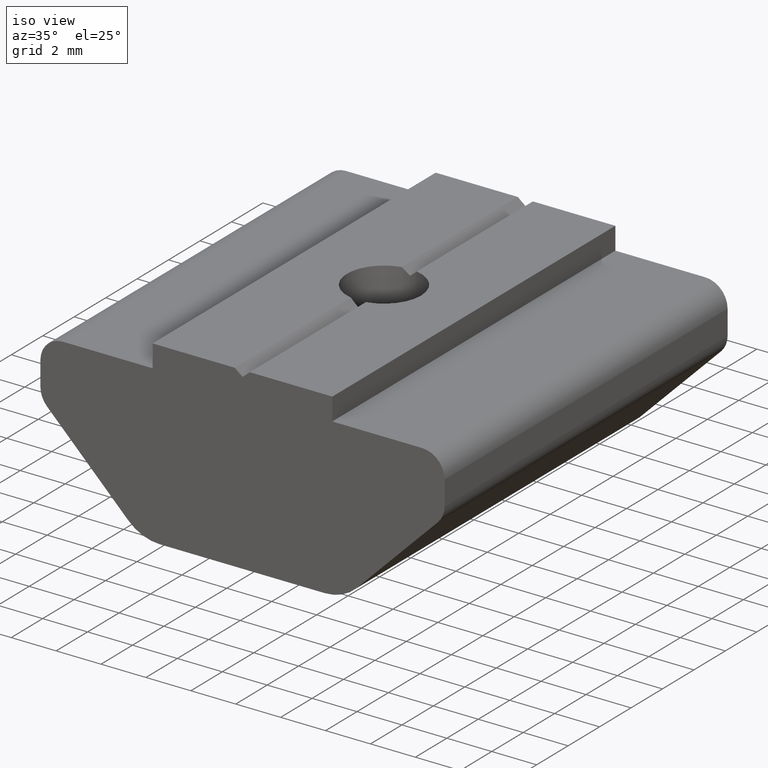
[diagram: clean part render]
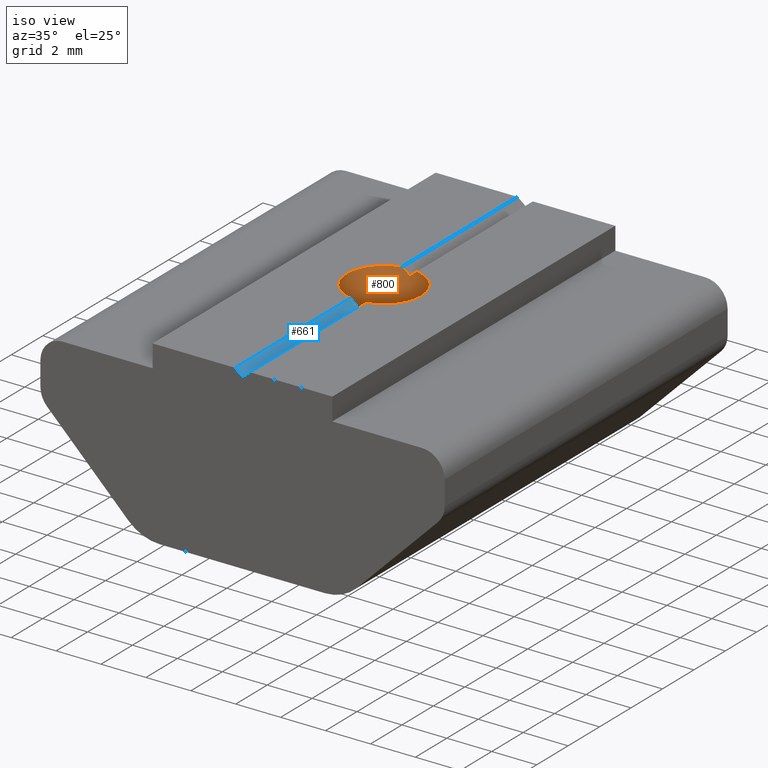
[diagram: same view with the hole feature highlighted: cylindrical wall and planar end face, labeled with their STEP entity ids]
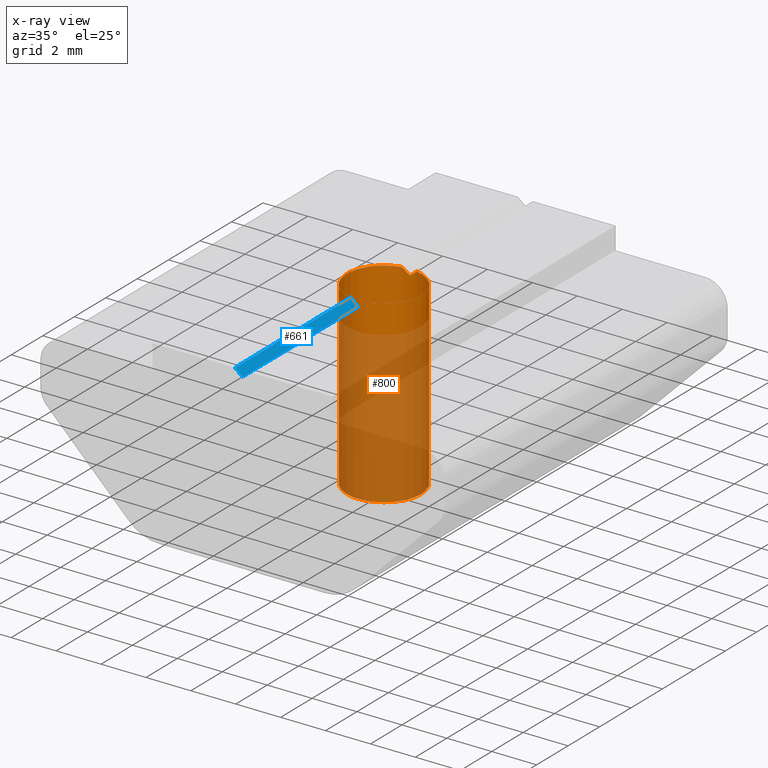
[diagram: x-ray of the same camera — body ghosted, the hole faces saturated]
A machine part, iso view. The highlighted faces form one hole feature of diameter 3.3 mm: the cylindrical wall (entity #800, orange) and its adjacent planar end face (entity #661, blue) — they share a circular edge in the B-rep.
The next image is the same camera in x-ray (body ghosted, the hole faces saturated) — the bore reads through the body.
Wall:
#233=CARTESIAN_POINT('',(-1.650000000000000,0.0,0.0));
#234=VERTEX_POINT('',#233);
#235=CARTESIAN_POINT('',(1.650000000000006,0.0,0.0));
#236=VERTEX_POINT('',#235);
#237=CARTESIAN_POINT('',(0.0,0.0,0.0));
#238=DIRECTION('',(0.0,-6.123234E-017,-1.0));
#239=DIRECTION('',(1.0,0.0,0.0));
#240=AXIS2_PLACEMENT_3D('',#237,#238,#239);
#241=CIRCLE('',#240,1.650000000000000);
#242=EDGE_CURVE('',#234,#236,#241,.T.);
#244=CARTESIAN_POINT('',(0.0,0.0,0.0));
#245=DIRECTION('',(0.0,-6.123234E-017,-1.0));
#246=DIRECTION('',(1.0,0.0,0.0));
#247=AXIS2_PLACEMENT_3D('',#244,#245,#246);
#248=CIRCLE('',#247,1.650000000000000);
#249=EDGE_CURVE('',#236,#234,#248,.T.);
#490=CARTESIAN_POINT('',(0.328340585124039,1.617001069931739,7.999998224000024));
#491=VERTEX_POINT('',#490);
#498=CARTESIAN_POINT('',(1.650000000000006,4.898586E-016,7.999998227599690));
#499=VERTEX_POINT('',#498);
#500=CARTESIAN_POINT('',(0.0,4.898586E-016,7.999998223105763));
#501=DIRECTION('',(0.0,-6.123234E-017,-1.0));
#502=DIRECTION('',(1.0,0.0,0.0));
#503=AXIS2_PLACEMENT_3D('',#500,#501,#502);
#504=CIRCLE('',#503,1.650000000000000);
#505=EDGE_CURVE('',#491,#499,#504,.T.);
#507=CARTESIAN_POINT('',(0.328340585124039,-1.617001069931745,7.999998224000024));
#508=VERTEX_POINT('',#507);
#509=CARTESIAN_POINT('',(0.0,4.898586E-016,7.999998223105763));
#510=DIRECTION('',(0.0,-6.123234E-017,-1.0));
#511=DIRECTION('',(1.0,0.0,0.0));
#512=AXIS2_PLACEMENT_3D('',#509,#510,#511);
#513=CIRCLE('',#512,1.650000000000000);
#514=EDGE_CURVE('',#499,#508,#513,.T.);
#547=CARTESIAN_POINT('',(8.015661E-009,1.649999999999999,7.725737074885956));
#548=VERTEX_POINT('',#547);
#555=CARTESIAN_POINT('',(0.0,4.730650E-016,7.725737068190712));
#556=DIRECTION('',(0.641072358860515,-4.699462E-017,-0.767480443206871));
#557=DIRECTION('',(0.767480443206871,3.925436E-017,0.641072358860515));
#558=AXIS2_PLACEMENT_3D('',#555,#556,#557);
#559=ELLIPSE('',#558,2.149891915298289,1.650000000000000);
#560=EDGE_CURVE('',#548,#491,#559,.T.);
#572=CARTESIAN_POINT('',(8.015661E-009,-1.650000000000005,7.725737074885956));
#573=VERTEX_POINT('',#572);
#574=CARTESIAN_POINT('',(0.0,4.730650E-016,7.725737068190712));
#575=DIRECTION('',(0.641072358860515,-4.699462E-017,-0.767480443206871));
#576=DIRECTION('',(0.767480443206871,3.925436E-017,0.641072358860515));
#577=AXIS2_PLACEMENT_3D('',#574,#575,#576);
#578=ELLIPSE('',#577,2.149891915298289,1.650000000000000);
#579=EDGE_CURVE('',#508,#573,#578,.T.);
#611=CARTESIAN_POINT('',(-0.343286605774694,1.613894143460371,7.999998234000032));
#612=VERTEX_POINT('',#611);
#619=CARTESIAN_POINT('',(0.0,4.730650E-016,7.725737081289935));
#620=DIRECTION('',(-0.624184046708014,-4.783944E-017,-0.781277336056287));
#621=DIRECTION('',(-0.781277336056287,3.822025E-017,0.624184046708014));
#622=AXIS2_PLACEMENT_3D('',#619,#620,#621);
#623=ELLIPSE('',#622,2.111926103384530,1.650000000000000);
#624=EDGE_CURVE('',#612,#548,#623,.T.);
#636=CARTESIAN_POINT('',(-0.343286605774694,-1.613894143460370,7.999998234000032));
#637=VERTEX_POINT('',#636);
#638=CARTESIAN_POINT('',(0.0,4.730650E-016,7.725737081289935));
#639=DIRECTION('',(-0.624184046708014,-4.783944E-017,-0.781277336056287));
#640=DIRECTION('',(-0.781277336056287,3.822025E-017,0.624184046708014));
#641=AXIS2_PLACEMENT_3D('',#638,#639,#640);
#642=ELLIPSE('',#641,2.111926103384530,1.650000000000000);
#643=EDGE_CURVE('',#573,#637,#642,.T.);
#690=CARTESIAN_POINT('',(0.0,4.898586E-016,7.999998234000032));
#691=DIRECTION('',(0.0,-6.123234E-017,-1.0));
#692=DIRECTION('',(1.0,0.0,0.0));
#693=AXIS2_PLACEMENT_3D('',#690,#691,#692);
#694=CIRCLE('',#693,1.650000000000000);
#695=EDGE_CURVE('',#637,#612,#694,.T.);
#777=CARTESIAN_POINT('',(0.0,0.0,0.0));
#778=DIRECTION('',(0.0,-6.123234E-017,-1.0));
#779=DIRECTION('',(1.0,0.0,0.0));
#780=AXIS2_PLACEMENT_3D('',#777,#778,#779);
#781=CYLINDRICAL_SURFACE('',#780,1.650000000000000);
#782=CARTESIAN_POINT('',(1.650000000000006,0.0,0.0));
#783=DIRECTION('',(0.0,0.0,1.0));
#784=VECTOR('',#783,7.999998227599690);
#785=LINE('',#782,#784);
#786=EDGE_CURVE('',#236,#499,#785,.T.);
#787=ORIENTED_EDGE('',*,*,#786,.T.);
#788=ORIENTED_EDGE('',*,*,#505,.F.);
#789=ORIENTED_EDGE('',*,*,#560,.F.);
#790=ORIENTED_EDGE('',*,*,#624,.F.);
#791=ORIENTED_EDGE('',*,*,#695,.F.);
#792=ORIENTED_EDGE('',*,*,#643,.F.);
#793=ORIENTED_EDGE('',*,*,#579,.F.);
#794=ORIENTED_EDGE('',*,*,#514,.F.);
#795=ORIENTED_EDGE('',*,*,#786,.F.);
#796=ORIENTED_EDGE('',*,*,#249,.T.);
#797=ORIENTED_EDGE('',*,*,#242,.T.);
#798=EDGE_LOOP('',(#787,#788,#789,#790,#791,#792,#793,#794,#795,#796,#797));
#799=FACE_OUTER_BOUND('',#798,.T.);
#800=ADVANCED_FACE('',(#799),#781,.F.);
End face:
#572=CARTESIAN_POINT('',(8.015661E-009,-1.650000000000005,7.725737074885956));
#573=VERTEX_POINT('',#572);
#581=CARTESIAN_POINT('',(8.015661E-009,-9.0,7.725737074885957));
#582=VERTEX_POINT('',#581);
#583=CARTESIAN_POINT('',(8.015661E-009,-1.650000000000000,7.725737074885956));
#584=DIRECTION('',(0.0,-1.0,0.0));
#585=VECTOR('',#584,7.350000000000000);
#586=LINE('',#583,#585);
#587=EDGE_CURVE('',#573,#582,#586,.T.);
#630=CARTESIAN_POINT('',(8.015661E-009,9.0,7.725737074885955));
#631=DIRECTION('',(0.624184046708014,4.783944E-017,0.781277336056287));
#632=DIRECTION('',(-0.781277336056287,3.822025E-017,0.624184046708014));
#633=AXIS2_PLACEMENT_3D('',#630,#631,#632);
#634=PLANE('',#633);
#635=ORIENTED_EDGE('',*,*,#587,.F.);
#636=CARTESIAN_POINT('',(-0.343286605774694,-1.613894143460370,7.999998234000032));
#637=VERTEX_POINT('',#636);
#638=CARTESIAN_POINT('',(0.0,4.730650E-016,7.725737081289935));
#639=DIRECTION('',(-0.624184046708014,-4.783944E-017,-0.781277336056287));
#640=DIRECTION('',(-0.781277336056287,3.822025E-017,0.624184046708014));
#641=AXIS2_PLACEMENT_3D('',#638,#639,#640);
#642=ELLIPSE('',#641,2.111926103384530,1.650000000000000);
#643=EDGE_CURVE('',#573,#637,#642,.T.);
#644=ORIENTED_EDGE('',*,*,#643,.T.);
#645=CARTESIAN_POINT('',(-0.343286605774694,-9.0,7.999998234000032));
#646=VERTEX_POINT('',#645);
#647=CARTESIAN_POINT('',(-0.343286605774694,-1.613894143460373,7.999998234000032));
#648=DIRECTION('',(0.0,-1.0,0.0));
#649=VECTOR('',#648,7.386105856539627);
#650=LINE('',#647,#649);
#651=EDGE_CURVE('',#637,#646,#650,.T.);
#652=ORIENTED_EDGE('',*,*,#651,.T.);
#653=CARTESIAN_POINT('',(8.015661E-009,-9.0,7.725737074885957));
#654=DIRECTION('',(-0.781277336056287,0.0,0.624184046708014));
#655=VECTOR('',#654,0.439391491276566);
#656=LINE('',#653,#655);
#657=EDGE_CURVE('',#582,#646,#656,.T.);
#658=ORIENTED_EDGE('',*,*,#657,.F.);
#659=EDGE_LOOP('',(#635,#644,#652,#658));
#660=FACE_OUTER_BOUND('',#659,.T.);
#661=ADVANCED_FACE('',(#660),#634,.T.);